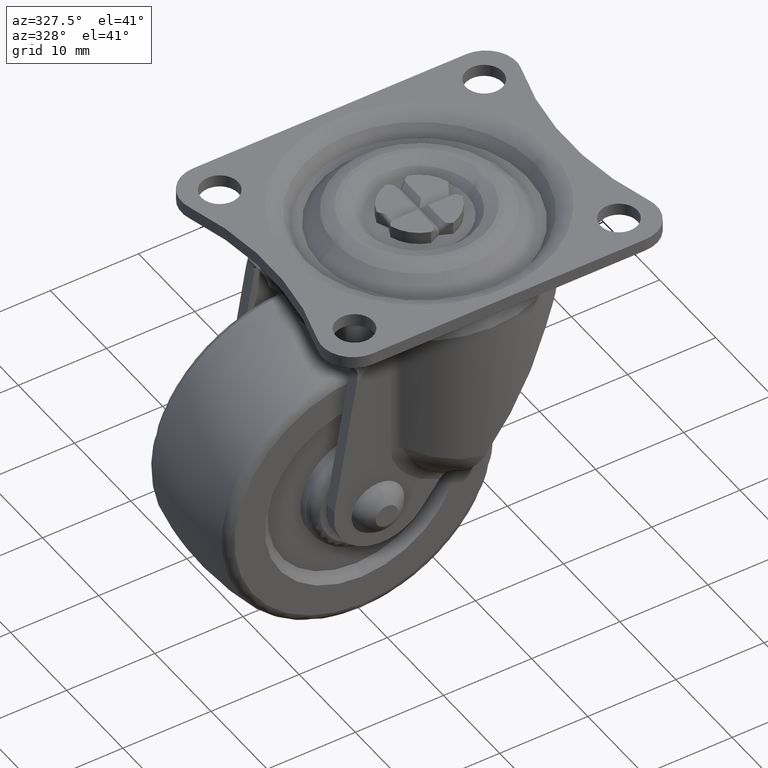
[diagram: clean part render]
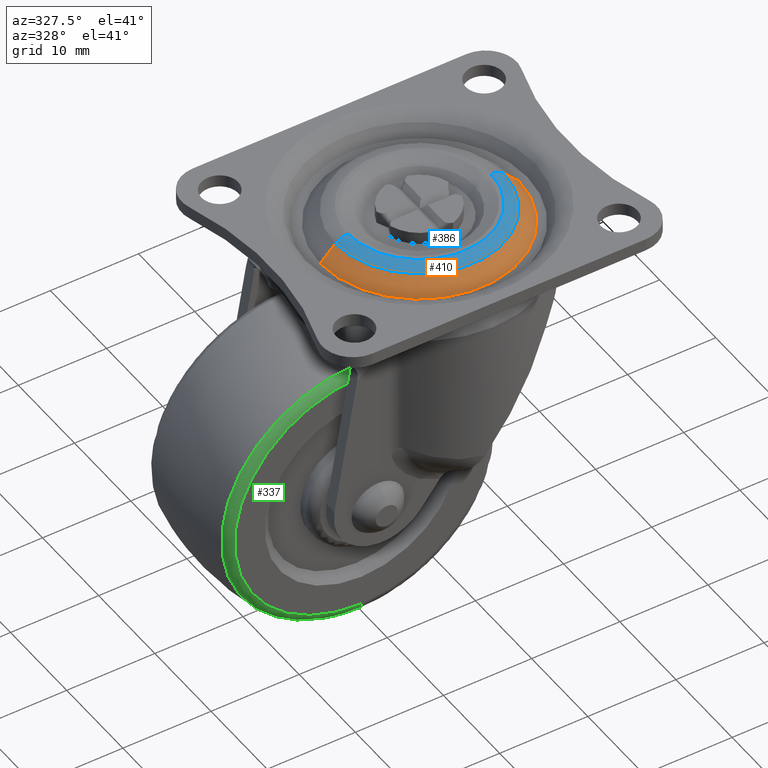
[diagram: same view with three faces highlighted in distinct colors, each labeled with its STEP entity id]
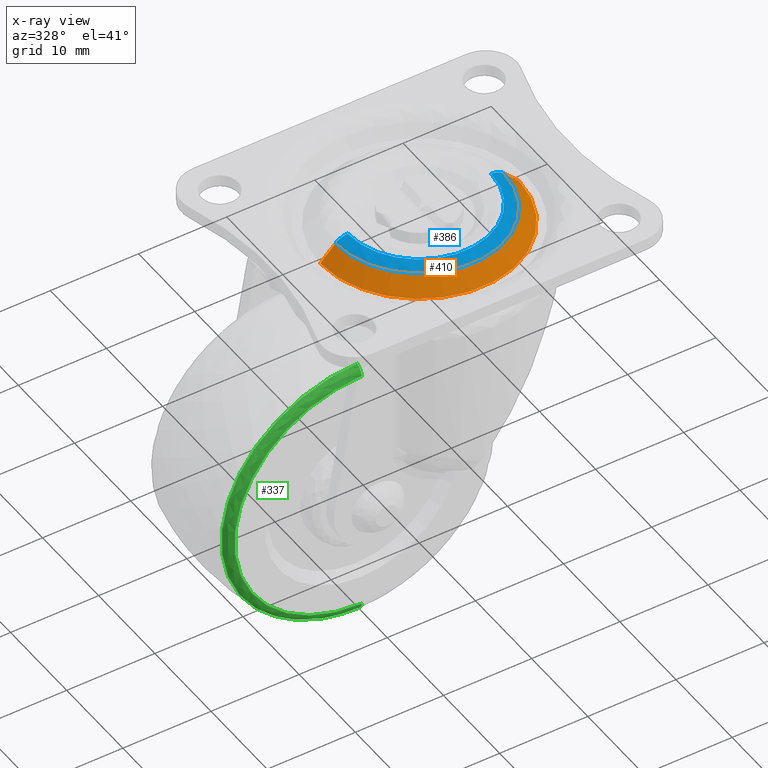
[diagram: x-ray of the same camera — body ghosted, the three highlighted faces saturated]
A machine part, auxiliary view with three faces highlighted in distinct colors.
The next image is the same camera in x-ray (body ghosted, the three faces saturated) — at least one of them is partly hidden behind the body in this view.
Their STEP definitions:

[orange] entity #410 — the highlighted face is a freeform B-spline surface patch.
#410=ADVANCED_FACE('',(#2382),#2381,.T.);
#2381=( BOUNDED_SURFACE() B_SPLINE_SURFACE( 2,1,((#5049,#5050),(#5051,#5052),(#5053,#5054),(#5055,#5056),(#5057,#5058)), .UNSPECIFIED.,.F.,.F.,.F.) B_SPLINE_SURFACE_WITH_KNOTS((3,2,3),(2,2),(0.00000000000E+00,5.00000000000E-01,1.00000000000E+00),(0.00000000000E+00,1.00000000000E+00), .UNSPECIFIED. ) GEOMETRIC_REPRESENTATION_ITEM() RATIONAL_B_SPLINE_SURFACE(((1.00000000000E+00,1.00000000000E+00),(7.07106781187E-01,7.07106781187E-01),(1.00000000000E+00,1.00000000000E+00),(7.07106781187E-01,7.07106781187E-01),(1.00000000000E+00,1.00000000000E+00))) REPRESENTATION_ITEM('') SURFACE() );
#2382=FACE_OUTER_BOUND('',#5059,.T.);
#5049=CARTESIAN_POINT('',(0.00000000000E+00,0.00000000000E+00,8.94999900000E+00));
#5050=CARTESIAN_POINT('',(1.59099025767E+01,-3.89680225306E-15,-6.95990357670E+00));
#5051=CARTESIAN_POINT('',(0.00000000000E+00,0.00000000000E+00,8.94999900000E+00));
#5052=CARTESIAN_POINT('',(1.59099025767E+01,-1.59099025767E+01,-6.95990357670E+00));
#5053=CARTESIAN_POINT('',(0.00000000000E+00,0.00000000000E+00,8.94999900000E+00));
#5054=CARTESIAN_POINT('',(-2.92260168979E-15,-1.59099025767E+01,-6.95990357670E+00));
#5055=CARTESIAN_POINT('',(0.00000000000E+00,0.00000000000E+00,8.94999900000E+00));
#5056=CARTESIAN_POINT('',(-1.59099025767E+01,-1.59099025767E+01,-6.95990357670E+00));
#5057=CARTESIAN_POINT('',(0.00000000000E+00,0.00000000000E+00,8.94999900000E+00));
#5058=CARTESIAN_POINT('',(-1.59099025767E+01,1.94840112653E-15,-6.95990357670E+00));
#5059=EDGE_LOOP('',(#6394,#6395,#6396,#6397));
#6394=ORIENTED_EDGE('',*,*,#7101,.T.);
#6395=ORIENTED_EDGE('',*,*,#7126,.T.);
#6396=ORIENTED_EDGE('',*,*,#7019,.F.);
#6397=ORIENTED_EDGE('',*,*,#7127,.F.);
#7019=EDGE_CURVE('',#9693,#9692,#9700,.T.);
#7101=EDGE_CURVE('',#10229,#10228,#10248,.T.);
#7126=EDGE_CURVE('',#10228,#9692,#10404,.T.);
#7127=EDGE_CURVE('',#10229,#9693,#10410,.T.);
#9692=VERTEX_POINT('',#13188);
#9693=VERTEX_POINT('',#13189);
#9700=CIRCLE('',#13197,1.12500000000E+01);
#10228=VERTEX_POINT('',#13774);
#10229=VERTEX_POINT('',#13775);
#10248=CIRCLE('',#13789,9.53578543763E+00);
#10404=(BOUNDED_CURVE() B_SPLINE_CURVE(1,(#13864,#13865),.UNSPECIFIED.,.F.,.F.) B_SPLINE_CURVE_WITH_KNOTS((2,2),(5.99361647665E-01,7.07106782297E-01),.UNSPECIFIED.) CURVE() GEOMETRIC_REPRESENTATION_ITEM() RATIONAL_B_SPLINE_CURVE((1.00000000000E+00,1.00000000000E+00)) REPRESENTATION_ITEM('') );
#10410=(BOUNDED_CURVE() B_SPLINE_CURVE(1,(#13866,#13867),.UNSPECIFIED.,.F.,.F.) B_SPLINE_CURVE_WITH_KNOTS((2,2),(5.99361648002E-01,7.07106781187E-01),.UNSPECIFIED.) CURVE() GEOMETRIC_REPRESENTATION_ITEM() RATIONAL_B_SPLINE_CURVE((7.50000000000E-01,7.50000000000E-01)) REPRESENTATION_ITEM('') );
#13188=CARTESIAN_POINT('',(-1.12500000000E+01,0.00000000000E+00,-2.30000100000E+00));
#13189=CARTESIAN_POINT('',(1.12500000000E+01,5.92118946467E-16,-2.30000100000E+00));
#13194=CARTESIAN_POINT('',(0.00000000000E+00,0.00000000000E+00,-2.30000100000E+00));
#13195=DIRECTION('',(-0.00000000000E+00,0.00000000000E+00,-1.00000000000E+00));
#13196=DIRECTION('',(-1.00000000000E+00,-1.22460635382E-16,0.00000000000E+00));
#13197=AXIS2_PLACEMENT_3D('',#13194,#13195,#13196);
#13774=CARTESIAN_POINT('',(-9.53578543763E+00,1.18423789293E-15,-5.85786437627E-01));
#13775=CARTESIAN_POINT('',(9.53578543763E+00,0.00000000000E+00,-5.85786437627E-01));
#13786=CARTESIAN_POINT('',(0.00000000000E+00,0.00000000000E+00,-5.85786437627E-01));
#13787=DIRECTION('',(0.00000000000E+00,-0.00000000000E+00,-1.00000000000E+00));
#13788=DIRECTION('',(1.00000000000E+00,-1.22460635382E-16,0.00000000000E+00));
#13789=AXIS2_PLACEMENT_3D('',#13786,#13787,#13788);
#13864=CARTESIAN_POINT('',(-9.53578542255E+00,3.50339072852E-15,-5.85786422551E-01));
#13865=CARTESIAN_POINT('',(-1.12500000177E+01,4.13318295361E-15,-2.30000101766E+00));
#13866=CARTESIAN_POINT('',(9.53578542792E+00,-3.90382726324E-15,-5.85786427924E-01));
#13867=CARTESIAN_POINT('',(1.12500000000E+01,-4.60560454547E-15,-2.30000100000E+00));

[blue] entity #386 — the highlighted face is a freeform B-spline surface patch.
#386=ADVANCED_FACE('',(#2140),#2139,.T.);
#2139=( BOUNDED_SURFACE() B_SPLINE_SURFACE( 2,2,((#4842,#4843,#4844),(#4845,#4846,#4847),(#4848,#4849,#4850),(#4851,#4852,#4853),(#4854,#4855,#4856)), .UNSPECIFIED.,.F.,.F.,.F.) B_SPLINE_SURFACE_WITH_KNOTS((3,2,3),(3,3),(0.00000000000E+00,5.00000000000E-01,1.00000000000E+00),(0.00000000000E+00,1.00000000000E+00), .UNSPECIFIED. ) GEOMETRIC_REPRESENTATION_ITEM() RATIONAL_B_SPLINE_SURFACE(((1.00000000000E+00,7.07106781187E-01,1.00000000000E+00),(7.07106781187E-01,5.00000000000E-01,7.07106781187E-01),(1.00000000000E+00,7.07106781187E-01,1.00000000000E+00),(7.07106781187E-01,5.00000000000E-01,7.07106781187E-01),(1.00000000000E+00,7.07106781187E-01,1.00000000000E+00))) REPRESENTATION_ITEM('') SURFACE() );
#2140=FACE_OUTER_BOUND('',#4857,.T.);
#4842=CARTESIAN_POINT('',(6.70735831288E+00,8.21441616989E-16,-5.85786437627E-01));
#4843=CARTESIAN_POINT('',(8.12157187525E+00,9.94638548069E-16,8.28427124746E-01));
#4844=CARTESIAN_POINT('',(9.53578543763E+00,1.16783547915E-15,-5.85786437627E-01));
#4845=CARTESIAN_POINT('',(6.70735831288E+00,-6.70735831288E+00,-5.85786437627E-01));
#4846=CARTESIAN_POINT('',(8.12157187525E+00,-8.12157187525E+00,8.28427124746E-01));
#4847=CARTESIAN_POINT('',(9.53578543763E+00,-9.53578543763E+00,-5.85786437627E-01));
#4848=CARTESIAN_POINT('',(1.23214886142E-15,-6.70735831288E+00,-5.85786437627E-01));
#4849=CARTESIAN_POINT('',(1.49194139812E-15,-8.12157187525E+00,8.28427124746E-01));
#4850=CARTESIAN_POINT('',(1.75173393483E-15,-9.53578543763E+00,-5.85786437627E-01));
#4851=CARTESIAN_POINT('',(-6.70735831288E+00,-6.70735831288E+00,-5.85786437627E-01));
#4852=CARTESIAN_POINT('',(-8.12157187525E+00,-8.12157187525E+00,8.28427124746E-01));
#4853=CARTESIAN_POINT('',(-9.53578543763E+00,-9.53578543763E+00,-5.85786437627E-01));
#4854=CARTESIAN_POINT('',(-6.70735831288E+00,-1.64285610585E-15,-5.85786437627E-01));
#4855=CARTESIAN_POINT('',(-8.12157187525E+00,-1.98924424818E-15,8.28427124746E-01));
#4856=CARTESIAN_POINT('',(-9.53578543763E+00,-2.33563239050E-15,-5.85786437627E-01));
#4857=EDGE_LOOP('',(#6301,#6302,#6303,#6304));
#6301=ORIENTED_EDGE('',*,*,#6973,.F.);
#6302=ORIENTED_EDGE('',*,*,#7099,.T.);
#6303=ORIENTED_EDGE('',*,*,#7101,.F.);
#6304=ORIENTED_EDGE('',*,*,#7100,.F.);
#6973=EDGE_CURVE('',#9385,#9386,#9387,.T.);
#7099=EDGE_CURVE('',#9385,#10228,#10236,.T.);
#7100=EDGE_CURVE('',#9386,#10229,#10242,.T.);
#7101=EDGE_CURVE('',#10229,#10228,#10248,.T.);
#9385=VERTEX_POINT('',#12981);
#9386=VERTEX_POINT('',#12982);
#9387=CIRCLE('',#12986,8.12157187525E+00);
#10228=VERTEX_POINT('',#13774);
#10229=VERTEX_POINT('',#13775);
#10236=(BOUNDED_CURVE() B_SPLINE_CURVE(2,(#13780,#13781,#13782),.UNSPECIFIED.,.F.,.F.) B_SPLINE_CURVE_WITH_KNOTS((3,3),(4.99999990066E-01,1.00000000000E+00),.UNSPECIFIED.) CURVE() GEOMETRIC_REPRESENTATION_ITEM() RATIONAL_B_SPLINE_CURVE((8.53553390593E-01,8.53553387684E-01,1.00000000000E+00)) REPRESENTATION_ITEM('') );
#10242=(BOUNDED_CURVE() B_SPLINE_CURVE(2,(#13783,#13784,#13785),.UNSPECIFIED.,.F.,.F.) B_SPLINE_CURVE_WITH_KNOTS((3,3),(4.99999999997E-01,1.00000000000E+00),.UNSPECIFIED.) CURVE() GEOMETRIC_REPRESENTATION_ITEM() RATIONAL_B_SPLINE_CURVE((6.40165042945E-01,6.40165042944E-01,7.50000000000E-01)) REPRESENTATION_ITEM('') );
#10248=CIRCLE('',#13789,9.53578543763E+00);
#12981=CARTESIAN_POINT('',(-8.12157187525E+00,0.00000000000E+00,0.00000000000E+00));
#12982=CARTESIAN_POINT('',(8.12157187525E+00,2.07241631263E-15,0.00000000000E+00));
#12983=CARTESIAN_POINT('',(0.00000000000E+00,0.00000000000E+00,0.00000000000E+00));
#12984=DIRECTION('',(0.00000000000E+00,0.00000000000E+00,1.00000000000E+00));
#12985=DIRECTION('',(-1.00000000000E+00,-1.22460635382E-16,0.00000000000E+00));
#12986=AXIS2_PLACEMENT_3D('',#12983,#12984,#12985);
#13774=CARTESIAN_POINT('',(-9.53578543763E+00,1.18423789293E-15,-5.85786437627E-01));
#13775=CARTESIAN_POINT('',(9.53578543763E+00,0.00000000000E+00,-5.85786437627E-01));
#13780=CARTESIAN_POINT('',(-8.12157184234E+00,-3.28479612479E-20,-3.35946155650E-16));
#13781=CARTESIAN_POINT('',(-8.94999898636E+00,-3.61985617538E-20,1.36353869163E-08));
#13782=CARTESIAN_POINT('',(-9.53578543763E+00,-3.85677940926E-20,-5.85786437627E-01));
#13783=CARTESIAN_POINT('',(8.12157187524E+00,-1.73427624149E-16,-6.50353833877E-17));
#13784=CARTESIAN_POINT('',(8.94999900000E+00,-3.46855248300E-16,4.08621496644E-12));
#13785=CARTESIAN_POINT('',(9.53578543763E+00,-5.92118946467E-16,-5.85786437627E-01));
#13786=CARTESIAN_POINT('',(0.00000000000E+00,0.00000000000E+00,-5.85786437627E-01));
#13787=DIRECTION('',(0.00000000000E+00,-0.00000000000E+00,-1.00000000000E+00));
#13788=DIRECTION('',(1.00000000000E+00,-1.22460635382E-16,0.00000000000E+00));
#13789=AXIS2_PLACEMENT_3D('',#13786,#13787,#13788);

[green] entity #337 — the highlighted face is a freeform B-spline surface patch.
#337=ADVANCED_FACE('',(#1626),#1625,.T.);
#1625=( BOUNDED_SURFACE() B_SPLINE_SURFACE( 2,2,((#4406,#4407,#4408,#4409,#4410),(#4411,#4412,#4413,#4414,#4415),(#4416,#4417,#4418,#4419,#4420),(#4421,#4422,#4423,#4424,#4425),(#4426,#4427,#4428,#4429,#4430)), .UNSPECIFIED.,.F.,.F.,.F.) B_SPLINE_SURFACE_WITH_KNOTS((3,2,3),(3,2,3),(0.00000000000E+00,5.00000000000E-01,1.00000000000E+00),(0.00000000000E+00,5.00000000000E-01,1.00000000000E+00), .UNSPECIFIED. ) GEOMETRIC_REPRESENTATION_ITEM() RATIONAL_B_SPLINE_SURFACE(((1.00000000000E+00,7.72511585077E-01,1.00000000000E+00,7.72511585077E-01,1.00000000000E+00),(7.07106781187E-01,5.46248180353E-01,7.07106781187E-01,5.46248180353E-01,7.07106781187E-01),(1.00000000000E+00,7.72511585077E-01,1.00000000000E+00,7.72511585077E-01,1.00000000000E+00),(7.07106781187E-01,5.46248180353E-01,7.07106781187E-01,5.46248180353E-01,7.07106781187E-01),(1.00000000000E+00,7.72511585077E-01,1.00000000000E+00,7.72511585077E-01,1.00000000000E+00))) REPRESENTATION_ITEM('') SURFACE() );
#1626=FACE_OUTER_BOUND('',#4431,.T.);
#4406=CARTESIAN_POINT('',(-1.10000000000E+01,-6.19354554100E+00,-1.06050960563E+01));
#4407=CARTESIAN_POINT('',(-1.10000000000E+01,-7.00000000000E+00,-1.07641923360E+01));
#4408=CARTESIAN_POINT('',(-1.10000000000E+01,-7.00000000000E+00,-1.15861901588E+01));
#4409=CARTESIAN_POINT('',(-1.10000000000E+01,-7.00000000000E+00,-1.24081879816E+01));
#4410=CARTESIAN_POINT('',(-1.10000000000E+01,-6.19354554100E+00,-1.25672842613E+01));
#4411=CARTESIAN_POINT('',(-2.63949039437E+01,-6.19354554100E+00,-1.06050960563E+01));
#4412=CARTESIAN_POINT('',(-2.62358076640E+01,-7.00000000000E+00,-1.07641923360E+01));
#4413=CARTESIAN_POINT('',(-2.54138098412E+01,-7.00000000000E+00,-1.15861901588E+01));
#4414=CARTESIAN_POINT('',(-2.45918120184E+01,-7.00000000000E+00,-1.24081879816E+01));
#4415=CARTESIAN_POINT('',(-2.44327157387E+01,-6.19354554100E+00,-1.25672842613E+01));
#4416=CARTESIAN_POINT('',(-2.63949039437E+01,-6.19354554100E+00,-2.60000000000E+01));
#4417=CARTESIAN_POINT('',(-2.62358076640E+01,-7.00000000000E+00,-2.60000000000E+01));
#4418=CARTESIAN_POINT('',(-2.54138098412E+01,-7.00000000000E+00,-2.60000000000E+01));
#4419=CARTESIAN_POINT('',(-2.45918120184E+01,-7.00000000000E+00,-2.60000000000E+01));
#4420=CARTESIAN_POINT('',(-2.44327157387E+01,-6.19354554100E+00,-2.60000000000E+01));
#4421=CARTESIAN_POINT('',(-2.63949039437E+01,-6.19354554100E+00,-4.13949039437E+01));
#4422=CARTESIAN_POINT('',(-2.62358076640E+01,-7.00000000000E+00,-4.12358076640E+01));
#4423=CARTESIAN_POINT('',(-2.54138098412E+01,-7.00000000000E+00,-4.04138098412E+01));
#4424=CARTESIAN_POINT('',(-2.45918120184E+01,-7.00000000000E+00,-3.95918120184E+01));
#4425=CARTESIAN_POINT('',(-2.44327157387E+01,-6.19354554100E+00,-3.94327157387E+01));
#4426=CARTESIAN_POINT('',(-1.10000000000E+01,-6.19354554100E+00,-4.13949039437E+01));
#4427=CARTESIAN_POINT('',(-1.10000000000E+01,-7.00000000000E+00,-4.12358076640E+01));
#4428=CARTESIAN_POINT('',(-1.10000000000E+01,-7.00000000000E+00,-4.04138098412E+01));
#4429=CARTESIAN_POINT('',(-1.10000000000E+01,-7.00000000000E+00,-3.95918120184E+01));
#4430=CARTESIAN_POINT('',(-1.10000000000E+01,-6.19354554100E+00,-3.94327157387E+01));
#4431=EDGE_LOOP('',(#6041,#6042,#6043,#6044));
#6041=ORIENTED_EDGE('',*,*,#6920,.F.);
#6042=ORIENTED_EDGE('',*,*,#6951,.F.);
#6043=ORIENTED_EDGE('',*,*,#6950,.T.);
#6044=ORIENTED_EDGE('',*,*,#6952,.T.);
#6920=EDGE_CURVE('',#9028,#9027,#9035,.T.);
#6950=EDGE_CURVE('',#9209,#9216,#9229,.T.);
#6951=EDGE_CURVE('',#9209,#9028,#9235,.T.);
#6952=EDGE_CURVE('',#9216,#9027,#9241,.T.);
#9027=VERTEX_POINT('',#12758);
#9028=VERTEX_POINT('',#12759);
#9035=CIRCLE('',#12767,1.44138098412E+01);
#9209=VERTEX_POINT('',#12866);
#9216=VERTEX_POINT('',#12870);
#9229=CIRCLE('',#12881,1.53949039437E+01);
#9235=(BOUNDED_CURVE() B_SPLINE_CURVE(2,(#12882,#12883,#12884),.UNSPECIFIED.,.F.,.F.) B_SPLINE_CURVE_WITH_KNOTS((3,3),(0.00000000000E+00,5.00000000000E-01),.UNSPECIFIED.) CURVE() GEOMETRIC_REPRESENTATION_ITEM() RATIONAL_B_SPLINE_CURVE((1.00000000000E+00,7.72511585077E-01,1.00000000000E+00)) REPRESENTATION_ITEM('') );
#9241=(BOUNDED_CURVE() B_SPLINE_CURVE(3,(#12885,#12886,#12887,#12888),.UNSPECIFIED.,.F.,.F.) B_SPLINE_CURVE_WITH_KNOTS((4,4),(0.00000000000E+00,5.00000000391E-01),.UNSPECIFIED.) CURVE() GEOMETRIC_REPRESENTATION_ITEM() RATIONAL_B_SPLINE_CURVE((1.00000000000E+00,1.00000000000E+00,1.00000000000E+00,1.00000000000E+00)) REPRESENTATION_ITEM('') );
#12758=CARTESIAN_POINT('',(-1.10000000000E+01,-7.00000000000E+00,-4.04138098412E+01));
#12759=CARTESIAN_POINT('',(-1.10000000000E+01,-7.00000000000E+00,-1.15861901588E+01));
#12764=CARTESIAN_POINT('',(-1.10000000000E+01,-7.00000000000E+00,-2.60000000000E+01));
#12765=DIRECTION('',(0.00000000000E+00,-1.00000000000E+00,-0.00000000000E+00));
#12766=DIRECTION('',(-1.22460635382E-16,0.00000000000E+00,-1.00000000000E+00));
#12767=AXIS2_PLACEMENT_3D('',#12764,#12765,#12766);
#12866=CARTESIAN_POINT('',(-1.10000000000E+01,-6.19354554100E+00,-1.06050960563E+01));
#12870=CARTESIAN_POINT('',(-1.10000000000E+01,-6.19354554100E+00,-4.13949039437E+01));
#12878=CARTESIAN_POINT('',(-1.10000000000E+01,-6.19354554100E+00,-2.60000000000E+01));
#12879=DIRECTION('',(0.00000000000E+00,-1.00000000000E+00,-0.00000000000E+00));
#12880=DIRECTION('',(-1.22460635382E-16,0.00000000000E+00,-1.00000000000E+00));
#12881=AXIS2_PLACEMENT_3D('',#12878,#12879,#12880);
#12882=CARTESIAN_POINT('',(-1.10000000000E+01,-6.19354554100E+00,-1.06050960563E+01));
#12883=CARTESIAN_POINT('',(-1.10000000000E+01,-7.00000000000E+00,-1.07641923360E+01));
#12884=CARTESIAN_POINT('',(-1.10000000000E+01,-7.00000000000E+00,-1.15861901588E+01));
#12885=CARTESIAN_POINT('',(-1.10000000000E+01,-6.19354554100E+00,-4.13949039437E+01));
#12886=CARTESIAN_POINT('',(-1.10000000000E+01,-6.69668107686E+00,-4.12604802957E+01));
#12887=CARTESIAN_POINT('',(-1.10000000000E+01,-6.96549922986E+00,-4.09334489279E+01));
#12888=CARTESIAN_POINT('',(-1.10000000000E+01,-7.00000000000E+00,-4.04138098402E+01));